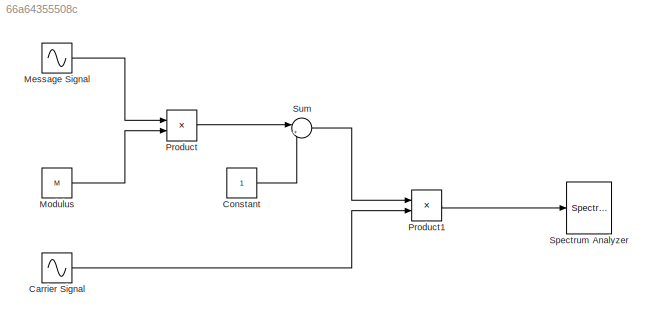
MODEL slx_66a64355508c
KIND model
CONFIG AbsTol = auto
CONFIG EnableMultiTasking = off
CONFIG FixedStep = auto
CONFIG MaxStep = auto
CONFIG MinStep = auto
CONFIG RelTol = 1e-3
CONFIG SampleTimeConstraint = Unconstrained
CONFIG SolverName = VariableStepAuto
CONFIG StartTime = 0.0
CONFIG StopTime = 10.0
BLOCK [Sin] Carrier Signal
  Frequency = 2*pi*Fc
  Ports = [0, 1]
  SampleTime = 1/1500
BLOCK [Constant] Constant
BLOCK [Sin] Message Signal
  Frequency = 2*pi*Fm
  Ports = [0, 1]
  SampleTime = 1/1500
BLOCK [Constant] Modulus
  Value = M
BLOCK [Product] Product
  Ports = [2, 1]
BLOCK [Product] Product1
  Ports = [2, 1]
BLOCK [SpectrumAnalyzer] Spectrum Analyzer
  Ports = [1]
  ScopeSpecificationString = spbscopes.SpectrumAnalyzerBlockCfg('CurrentConfiguration', extmgr.ConfigurationSet(extmgr.Configuration('Core','General UI',true),extmgr.Configuration('Core','Source UI',true),extmgr.Configuration('Sources','WiredSimulink',true),extmgr.Configuration('Visuals','Spectrum',true,'AxesProperties',struct('Color',{[0 0 0],[0 0 0]},'XColor',{[0.686274509803922 0.686274509803922 0.686274509803922],[0.68627...<+2799ch>
BLOCK [Sum] Sum
  Inputs = |++
  Ports = [2, 1]
LINE Carrier Signal:1 -> Product1:2
LINE Constant:1 -> Sum:2
LINE Message Signal:1 -> Product:1
LINE Modulus:1 -> Product:2
LINE Product1:1 -> Spectrum Analyzer:1
LINE Product:1 -> Sum:1
LINE Sum:1 -> Product1:1
